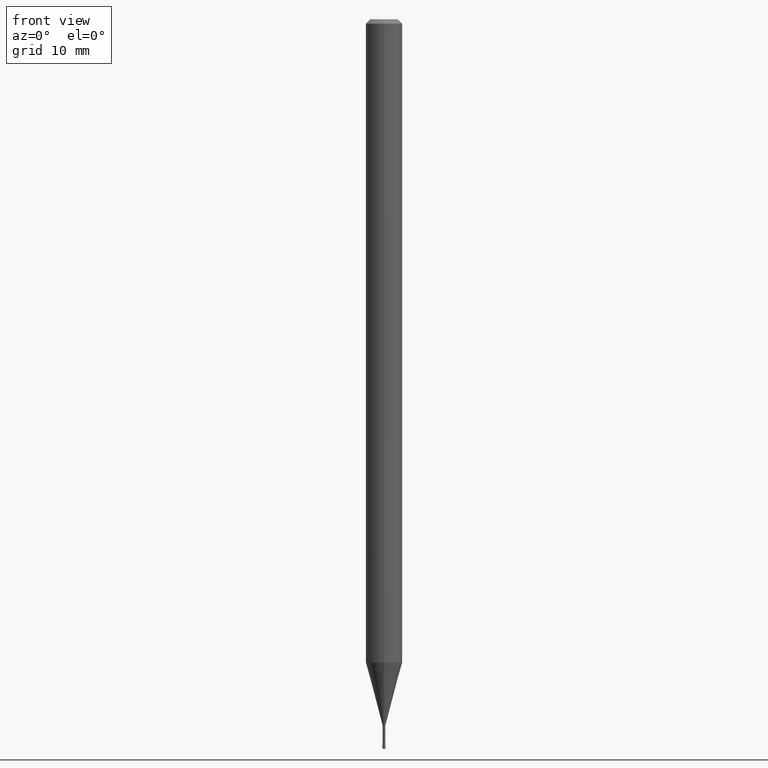
[diagram: clean part render]
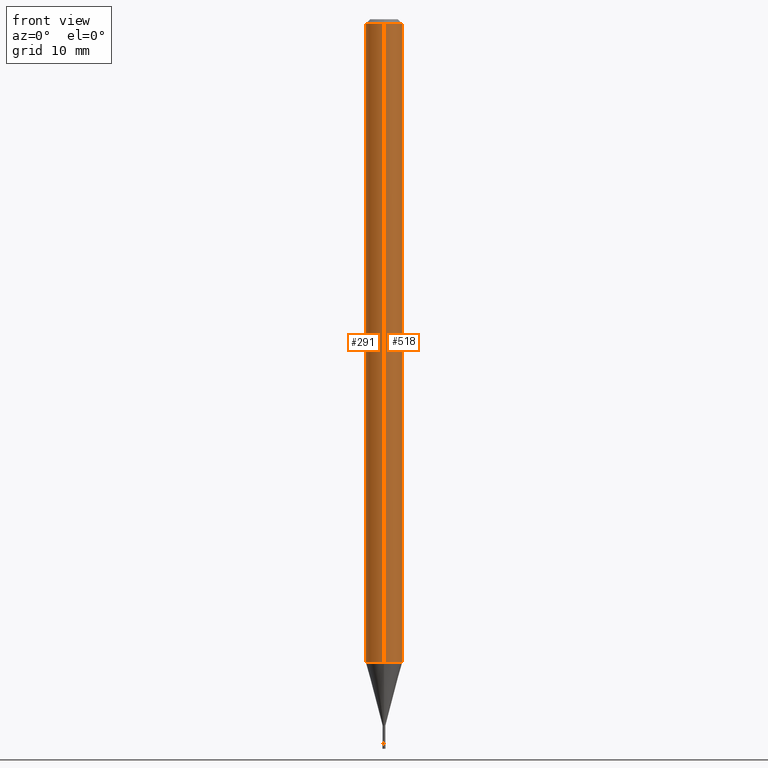
[diagram: same view with one multi-face feature highlighted, each face labeled with its STEP entity id]
A machine part, front view. The highlighted faces form ONE feature: a constant-radius fillet chain: 2 tangent blend faces with common blend radius 1.5875 mm. The faces share edges in the B-rep.
Their STEP definitions:
[1] entity #291 (Cylinder):
#19 = FACE_OUTER_BOUND ( 'NONE', #417, .T. ) ;
#32 = EDGE_CURVE ( 'NONE', #292, #67, #332, .T. ) ;
#67 = VERTEX_POINT ( 'NONE', #409 ) ;
#68 = DIRECTION ( 'NONE',  ( -6.982962677686265922E-15, -1.000000000000000000, 3.483106191921935554E-15 ) ) ;
#69 = AXIS2_PLACEMENT_3D ( 'NONE', #382, #115, #68 ) ;
#72 = ORIENTED_EDGE ( 'NONE', *, *, #238, .T. ) ;
#80 = CARTESIAN_POINT ( 'NONE',  ( -4.364351673553912750E-16, -0.06250000000000005551, -0.01499999999999981209 ) ) ;
#100 = ORIENTED_EDGE ( 'NONE', *, *, #32, .F. ) ;
#115 = DIRECTION ( 'NONE',  ( -2.446185573266101259E-29, 3.490454887587355356E-15, 1.000000000000000000 ) ) ;
#119 = LINE ( 'NONE', #236, #424 ) ;
#133 = ORIENTED_EDGE ( 'NONE', *, *, #303, .F. ) ;
#149 = DIRECTION ( 'NONE',  ( -6.982962677686265922E-15, -1.000000000000000000, 3.490454887587355356E-15 ) ) ;
#168 = DIRECTION ( 'NONE',  ( -2.446185573266101259E-29, 3.490454887587354962E-15, 1.000000000000000000 ) ) ;
#177 = CARTESIAN_POINT ( 'NONE',  ( 0.000000000000000000, 0.000000000000000000, 0.000000000000000000 ) ) ;
#200 = CARTESIAN_POINT ( 'NONE',  ( -4.364351673553377310E-16, -0.06250000000000770217, -2.204287463322519347 ) ) ;
#225 = CIRCLE ( 'NONE', #435, 0.06250000000000000000 ) ;
#228 = CYLINDRICAL_SURFACE ( 'NONE', #469, 0.06250000000000000000 ) ;
#231 = CARTESIAN_POINT ( 'NONE',  ( 5.392096192110878266E-29, -7.693965950001622494E-15, -2.204287463322519791 ) ) ;
#236 = CARTESIAN_POINT ( 'NONE',  ( -4.364351673553916201E-16, -0.06250000000000000000, 2.181534304742097098E-16 ) ) ;
#238 = EDGE_CURVE ( 'NONE', #292, #486, #225, .T. ) ;
#250 = CARTESIAN_POINT ( 'NONE',  ( 4.440892098500625669E-16, 0.06250000000000000000, -2.181534304742097098E-16 ) ) ;
#291 = ADVANCED_FACE ( 'NONE', ( #19 ), #228, .T. ) ;
#292 = VERTEX_POINT ( 'NONE', #502 ) ;
#299 = DIRECTION ( 'NONE',  ( -6.982962677686265922E-15, -1.000000000000000000, 4.370956789862821150E-15 ) ) ;
#303 = EDGE_CURVE ( 'NONE', #67, #362, #447, .T. ) ;
#310 = VECTOR ( 'NONE', #168, 39.37007874015748143 ) ;
#332 = LINE ( 'NONE', #250, #310 ) ;
#340 = DIRECTION ( 'NONE',  ( -2.446185573266101259E-29, 3.490454887587355356E-15, 1.000000000000000000 ) ) ;
#354 = DIRECTION ( 'NONE',  ( -2.446185573266101259E-29, 3.490454887587354962E-15, 1.000000000000000000 ) ) ;
#362 = VERTEX_POINT ( 'NONE', #80 ) ;
#382 = CARTESIAN_POINT ( 'NONE',  ( 3.669278359899158842E-31, -5.235682331381043783E-17, -0.01500000000000003067 ) ) ;
#386 = DIRECTION ( 'NONE',  ( -2.446185573266101259E-29, 3.490454887587355356E-15, 1.000000000000000000 ) ) ;
#409 = CARTESIAN_POINT ( 'NONE',  ( 4.440892098501169490E-16, 0.06249999999999995837, -0.01500000000000024751 ) ) ;
#417 = EDGE_LOOP ( 'NONE', ( #100, #72, #489, #133 ) ) ;
#424 = VECTOR ( 'NONE', #354, 39.37007874015748143 ) ;
#435 = AXIS2_PLACEMENT_3D ( 'NONE', #231, #386, #299 ) ;
#447 = CIRCLE ( 'NONE', #69, 0.06250000000000000000 ) ;
#469 = AXIS2_PLACEMENT_3D ( 'NONE', #177, #340, #149 ) ;
#486 = VERTEX_POINT ( 'NONE', #200 ) ;
#489 = ORIENTED_EDGE ( 'NONE', *, *, #496, .T. ) ;
#496 = EDGE_CURVE ( 'NONE', #486, #362, #119, .T. ) ;
#502 = CARTESIAN_POINT ( 'NONE',  ( 4.440892098501163573E-16, 0.06249999999999229783, -2.204287463322520235 ) ) ;
[2] entity #518 (Cylinder):
#22 = CIRCLE ( 'NONE', #123, 0.06250000000000000000 ) ;
#32 = EDGE_CURVE ( 'NONE', #292, #67, #332, .T. ) ;
#63 = ORIENTED_EDGE ( 'NONE', *, *, #32, .T. ) ;
#67 = VERTEX_POINT ( 'NONE', #409 ) ;
#80 = CARTESIAN_POINT ( 'NONE',  ( -4.364351673553912750E-16, -0.06250000000000005551, -0.01499999999999981209 ) ) ;
#87 = DIRECTION ( 'NONE',  ( -2.446185573266101259E-29, 3.490454887587355356E-15, 1.000000000000000000 ) ) ;
#98 = EDGE_CURVE ( 'NONE', #486, #292, #480, .T. ) ;
#119 = LINE ( 'NONE', #236, #424 ) ;
#121 = CARTESIAN_POINT ( 'NONE',  ( 3.669278359899158842E-31, -5.235682331381043783E-17, -0.01500000000000003067 ) ) ;
#123 = AXIS2_PLACEMENT_3D ( 'NONE', #121, #153, #396 ) ;
#153 = DIRECTION ( 'NONE',  ( -2.446185573266101259E-29, 3.490454887587355356E-15, 1.000000000000000000 ) ) ;
#168 = DIRECTION ( 'NONE',  ( -2.446185573266101259E-29, 3.490454887587354962E-15, 1.000000000000000000 ) ) ;
#190 = ORIENTED_EDGE ( 'NONE', *, *, #455, .F. ) ;
#194 = FACE_OUTER_BOUND ( 'NONE', #498, .T. ) ;
#200 = CARTESIAN_POINT ( 'NONE',  ( -4.364351673553377310E-16, -0.06250000000000770217, -2.204287463322519347 ) ) ;
#236 = CARTESIAN_POINT ( 'NONE',  ( -4.364351673553916201E-16, -0.06250000000000000000, 2.181534304742097098E-16 ) ) ;
#245 = DIRECTION ( 'NONE',  ( -6.982962677686265922E-15, -1.000000000000000000, 4.370956789862821150E-15 ) ) ;
#249 = AXIS2_PLACEMENT_3D ( 'NONE', #478, #87, #358 ) ;
#250 = CARTESIAN_POINT ( 'NONE',  ( 4.440892098500625669E-16, 0.06250000000000000000, -2.181534304742097098E-16 ) ) ;
#258 = CARTESIAN_POINT ( 'NONE',  ( 5.392096192110878266E-29, -7.693965950001622494E-15, -2.204287463322519791 ) ) ;
#292 = VERTEX_POINT ( 'NONE', #502 ) ;
#296 = ORIENTED_EDGE ( 'NONE', *, *, #496, .F. ) ;
#310 = VECTOR ( 'NONE', #168, 39.37007874015748143 ) ;
#332 = LINE ( 'NONE', #250, #310 ) ;
#354 = DIRECTION ( 'NONE',  ( -2.446185573266101259E-29, 3.490454887587354962E-15, 1.000000000000000000 ) ) ;
#358 = DIRECTION ( 'NONE',  ( -6.982962677686265922E-15, -1.000000000000000000, 3.490454887587355356E-15 ) ) ;
#362 = VERTEX_POINT ( 'NONE', #80 ) ;
#388 = AXIS2_PLACEMENT_3D ( 'NONE', #258, #490, #245 ) ;
#396 = DIRECTION ( 'NONE',  ( -6.982962677686265922E-15, -1.000000000000000000, 3.483106191921935554E-15 ) ) ;
#409 = CARTESIAN_POINT ( 'NONE',  ( 4.440892098501169490E-16, 0.06249999999999995837, -0.01500000000000024751 ) ) ;
#412 = ORIENTED_EDGE ( 'NONE', *, *, #98, .T. ) ;
#424 = VECTOR ( 'NONE', #354, 39.37007874015748143 ) ;
#455 = EDGE_CURVE ( 'NONE', #362, #67, #22, .T. ) ;
#478 = CARTESIAN_POINT ( 'NONE',  ( 0.000000000000000000, 0.000000000000000000, 0.000000000000000000 ) ) ;
#479 = CYLINDRICAL_SURFACE ( 'NONE', #249, 0.06250000000000000000 ) ;
#480 = CIRCLE ( 'NONE', #388, 0.06250000000000000000 ) ;
#486 = VERTEX_POINT ( 'NONE', #200 ) ;
#490 = DIRECTION ( 'NONE',  ( -2.446185573266101259E-29, 3.490454887587355356E-15, 1.000000000000000000 ) ) ;
#496 = EDGE_CURVE ( 'NONE', #486, #362, #119, .T. ) ;
#498 = EDGE_LOOP ( 'NONE', ( #412, #63, #190, #296 ) ) ;
#502 = CARTESIAN_POINT ( 'NONE',  ( 4.440892098501163573E-16, 0.06249999999999229783, -2.204287463322520235 ) ) ;
#518 = ADVANCED_FACE ( 'NONE', ( #194 ), #479, .T. ) ;